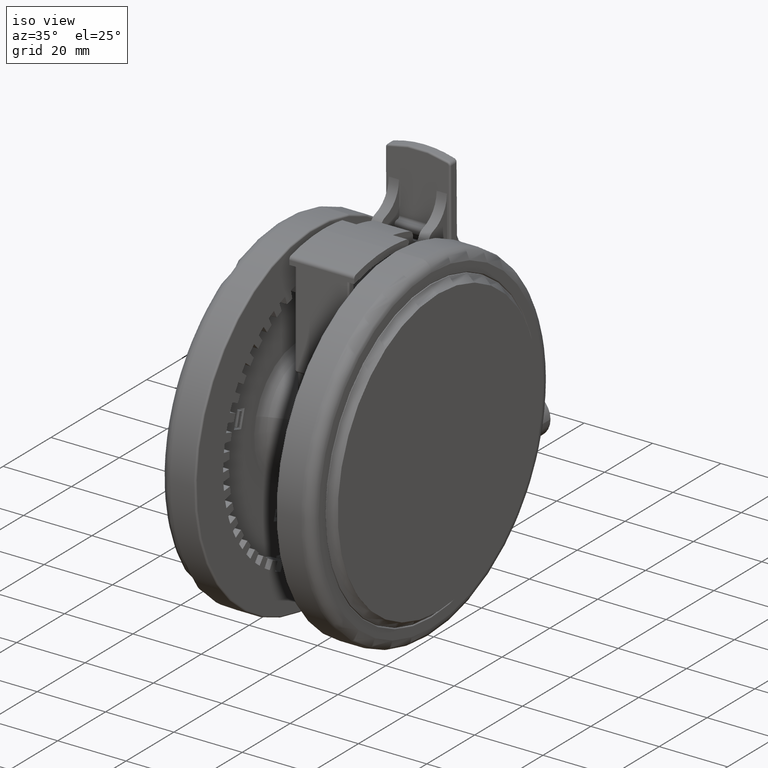
[diagram: clean part render]
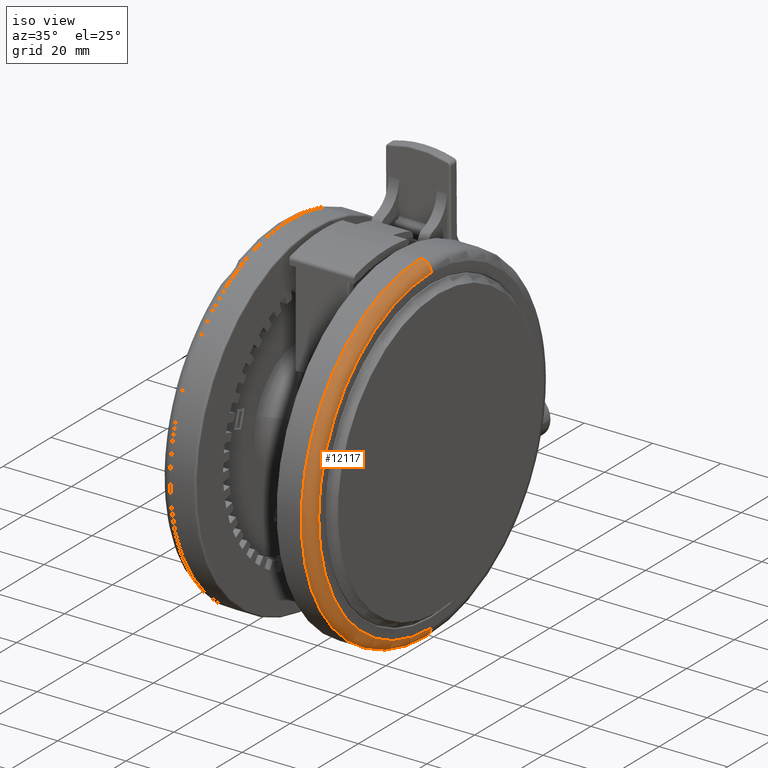
[diagram: same view with one face highlighted and labeled with its STEP entity id]
A machine part, iso view. The second image highlights one B-rep face of the part: STEP entity #12117.
In plain terms, the highlighted toroidal blend (fillet) surface has major radius 47 mm and minor (blend) radius 3 mm.
Its self-contained STEP definition (entity closure, byte-faithful):
#828 = VERTEX_POINT ( 'NONE', #29055 ) ;
#2536 = CARTESIAN_POINT ( 'NONE',  ( 46.99999999999998600, 8.426774611007273000E-015, -5.099999999999829100 ) ) ;
#3828 = AXIS2_PLACEMENT_3D ( 'NONE', #4011, #30392, #7802 ) ;
#4011 = CARTESIAN_POINT ( 'NONE',  ( -1.387778780781445700E-014, 1.734723475976807100E-015, -2.099999999999938800 ) ) ;
#4734 = EDGE_LOOP ( 'NONE', ( #19542, #22935, #4901, #15214 ) ) ;
#4901 = ORIENTED_EDGE ( 'NONE', *, *, #11495, .T. ) ;
#6361 = DIRECTION ( 'NONE',  ( -1.000000000000000000, -1.509229262741580100E-016, 0.0000000000000000000 ) ) ;
#6760 = DIRECTION ( 'NONE',  ( 2.733876061888933300E-016, -1.000000000000000000, 1.337754666183254700E-016 ) ) ;
#6849 = EDGE_CURVE ( 'NONE', #11826, #16132, #30301, .T. ) ;
#7282 = EDGE_CURVE ( 'NONE', #9532, #828, #12545, .T. ) ;
#7802 = DIRECTION ( 'NONE',  ( 1.000000000000000000, 1.509229262741580100E-016, -1.845450506358305400E-017 ) ) ;
#8223 = AXIS2_PLACEMENT_3D ( 'NONE', #30922, #8345, #34702 ) ;
#8295 = CARTESIAN_POINT ( 'NONE',  ( -50.00000000000001400, -1.233598323332281900E-014, -5.099999999999827300 ) ) ;
#8345 = DIRECTION ( 'NONE',  ( -2.126349141558171900E-017, -1.337754666183254700E-016, -1.000000000000000000 ) ) ;
#9532 = VERTEX_POINT ( 'NONE', #46928 ) ;
#11495 = EDGE_CURVE ( 'NONE', #9532, #16132, #24992, .T. ) ;
#11826 = VERTEX_POINT ( 'NONE', #8295 ) ;
#12117 = ADVANCED_FACE ( 'NONE', ( #25512 ), #35527, .T. ) ;
#12545 = CIRCLE ( 'NONE', #3828, 47.00000000000000000 ) ;
#15214 = ORIENTED_EDGE ( 'NONE', *, *, #6849, .F. ) ;
#16132 = VERTEX_POINT ( 'NONE', #48498 ) ;
#18335 = DIRECTION ( 'NONE',  ( -2.126349141558171900E-017, -1.337754666183254700E-016, -1.000000000000000000 ) ) ;
#19542 = ORIENTED_EDGE ( 'NONE', *, *, #36993, .F. ) ;
#19994 = CIRCLE ( 'NONE', #34075, 3.000000000000002700 ) ;
#22295 = DIRECTION ( 'NONE',  ( 1.000000000000000000, 1.509229262741580100E-016, -2.126349141558173700E-017 ) ) ;
#22935 = ORIENTED_EDGE ( 'NONE', *, *, #7282, .F. ) ;
#24992 = CIRCLE ( 'NONE', #48150, 3.000000000000002700 ) ;
#25112 = AXIS2_PLACEMENT_3D ( 'NONE', #44874, #18335, #22295 ) ;
#25512 = FACE_OUTER_BOUND ( 'NONE', #4734, .T. ) ;
#28921 = DIRECTION ( 'NONE',  ( -1.509229262741580100E-016, 1.000000000000000000, -1.337754666183254700E-016 ) ) ;
#29055 = CARTESIAN_POINT ( 'NONE',  ( -47.00000000000001400, -1.172523862411199300E-014, -2.099999999999937900 ) ) ;
#29328 = CARTESIAN_POINT ( 'NONE',  ( -47.00000000000001400, -1.151582041475614100E-014, -5.099999999999827300 ) ) ;
#30301 = CIRCLE ( 'NONE', #8223, 50.00000000000000000 ) ;
#30392 = DIRECTION ( 'NONE',  ( 2.126349141558171900E-017, 1.337754666183254700E-016, 1.000000000000000000 ) ) ;
#30922 = CARTESIAN_POINT ( 'NONE',  ( -1.394157828206119900E-014, 1.333397076121845300E-015, -5.099999999999828200 ) ) ;
#33097 = DIRECTION ( 'NONE',  ( 1.000000000000000000, 2.733876061888929400E-016, 0.0000000000000000000 ) ) ;
#34075 = AXIS2_PLACEMENT_3D ( 'NONE', #29328, #6760, #33097 ) ;
#34702 = DIRECTION ( 'NONE',  ( 1.000000000000000000, 1.509229262741580400E-016, -1.734723475976807100E-017 ) ) ;
#35527 = TOROIDAL_SURFACE ( 'NONE', #25112, 47.00000000000000000, 3.000000000000000000 ) ;
#36993 = EDGE_CURVE ( 'NONE', #828, #11826, #19994, .T. ) ;
#44874 = CARTESIAN_POINT ( 'NONE',  ( -1.394157828206119900E-014, 1.333397076121845300E-015, -5.099999999999828200 ) ) ;
#46928 = CARTESIAN_POINT ( 'NONE',  ( 46.99999999999998600, 8.828101010862234300E-015, -2.099999999999939700 ) ) ;
#48150 = AXIS2_PLACEMENT_3D ( 'NONE', #2536, #28921, #6361 ) ;
#48498 = CARTESIAN_POINT ( 'NONE',  ( 49.99999999999998600, 8.879543389829747400E-015, -5.099999999999829100 ) ) ;